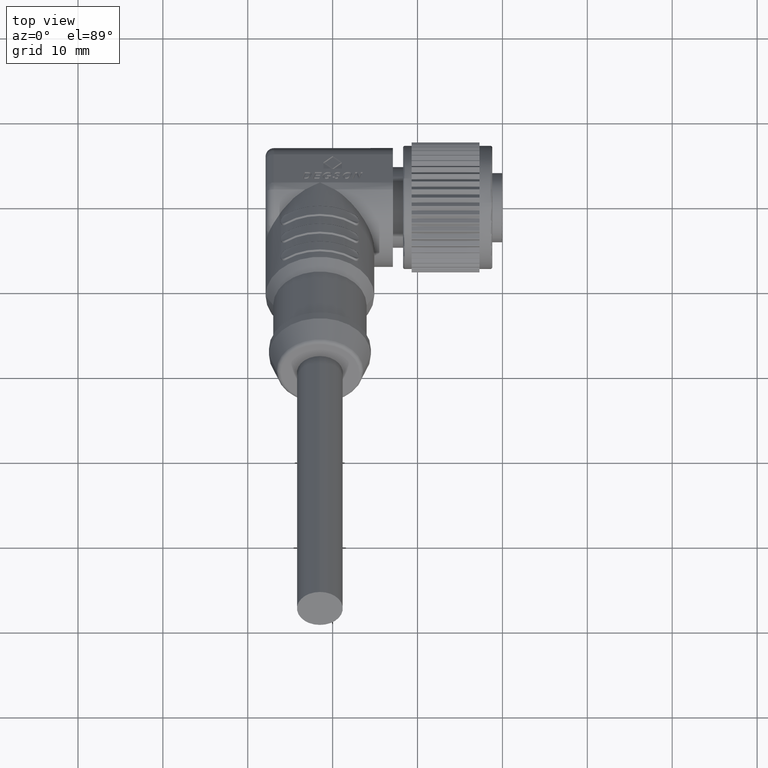
[diagram: clean part render]
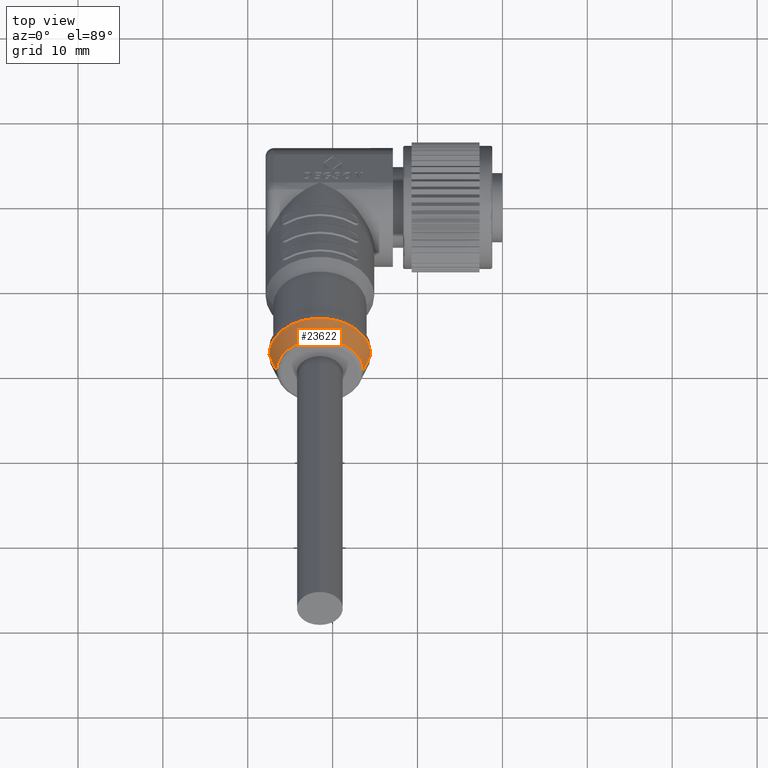
[diagram: same view with one face highlighted and labeled with its STEP entity id]
A machine part, top view. The second image highlights one B-rep face of the part: STEP entity #23622.
In plain terms, the highlighted conical surface has half-angle 18.435 deg.
Its self-contained STEP definition (entity closure, byte-faithful):
#4165=CARTESIAN_POINT('',(-2.15E1,-1.767766952966E1,1.767766952966E1));
#4166=DIRECTION('',(0.E0,7.071067811865E-1,-7.071067811865E-1));
#4167=DIRECTION('',(-1.E0,0.E0,0.E0));
#4168=AXIS2_PLACEMENT_3D('',#4165,#4166,#4167);
#4170=DIRECTION('',(-3.162277660165E-1,-6.708203932500E-1,6.708203932500E-1));
#4171=VECTOR('',#4170,2.801898050152E0);
#4172=CARTESIAN_POINT('',(-1.55E1,-1.767766952966E1,1.767766952966E1));
#4173=LINE('',#4172,#4171);
#4174=CARTESIAN_POINT('',(-2.15E1,-1.955723988151E1,1.955723988151E1));
#4175=DIRECTION('',(0.E0,7.071067811865E-1,-7.071067811865E-1));
#4176=DIRECTION('',(-1.E0,0.E0,0.E0));
#4177=AXIS2_PLACEMENT_3D('',#4174,#4175,#4176);
#4199=DIRECTION('',(3.162277660165E-1,-6.708203932500E-1,6.708203932500E-1));
#4200=VECTOR('',#4199,2.801898050152E0);
#4201=CARTESIAN_POINT('',(-2.75E1,-1.767766952966E1,1.767766952966E1));
#4202=LINE('',#4201,#4200);
#13994=CARTESIAN_POINT('',(-2.75E1,-1.767766952966E1,1.767766952966E1));
#13995=VERTEX_POINT('',#13994);
#13996=CARTESIAN_POINT('',(-1.55E1,-1.767766952966E1,1.767766952966E1));
#13997=VERTEX_POINT('',#13996);
#13998=CARTESIAN_POINT('',(-2.661396203900E1,-1.955723988151E1,
1.955723988151E1));
#13999=CARTESIAN_POINT('',(-1.638603796100E1,-1.955723988151E1,
1.955723988151E1));
#14000=VERTEX_POINT('',#13998);
#14001=VERTEX_POINT('',#13999);
#23608=CARTESIAN_POINT('',(-2.15E1,-1.861745470558E1,1.861745470558E1));
#23609=DIRECTION('',(0.E0,7.071067811865E-1,-7.071067811865E-1));
#23610=DIRECTION('',(-1.E0,0.E0,0.E0));
#23611=AXIS2_PLACEMENT_3D('',#23608,#23609,#23610);
#23612=CONICAL_SURFACE('',#23611,5.556981019497E0,1.843494882292E1);
#23614=ORIENTED_EDGE('',*,*,#23613,.F.);
#23616=ORIENTED_EDGE('',*,*,#23615,.F.);
#23617=ORIENTED_EDGE('',*,*,#23603,.T.);
#23619=ORIENTED_EDGE('',*,*,#23618,.T.);
#23620=EDGE_LOOP('',(#23614,#23616,#23617,#23619));
#23621=FACE_OUTER_BOUND('',#23620,.F.);
#23622=ADVANCED_FACE('',(#23621),#23612,.T.);
#4169=CIRCLE('',#4168,6.E0);
#4178=CIRCLE('',#4177,5.113962038995E0);
#23603=EDGE_CURVE('',#13995,#13997,#4169,.T.);
#23613=EDGE_CURVE('',#14000,#14001,#4178,.T.);
#23615=EDGE_CURVE('',#13995,#14000,#4202,.T.);
#23618=EDGE_CURVE('',#13997,#14001,#4173,.T.);